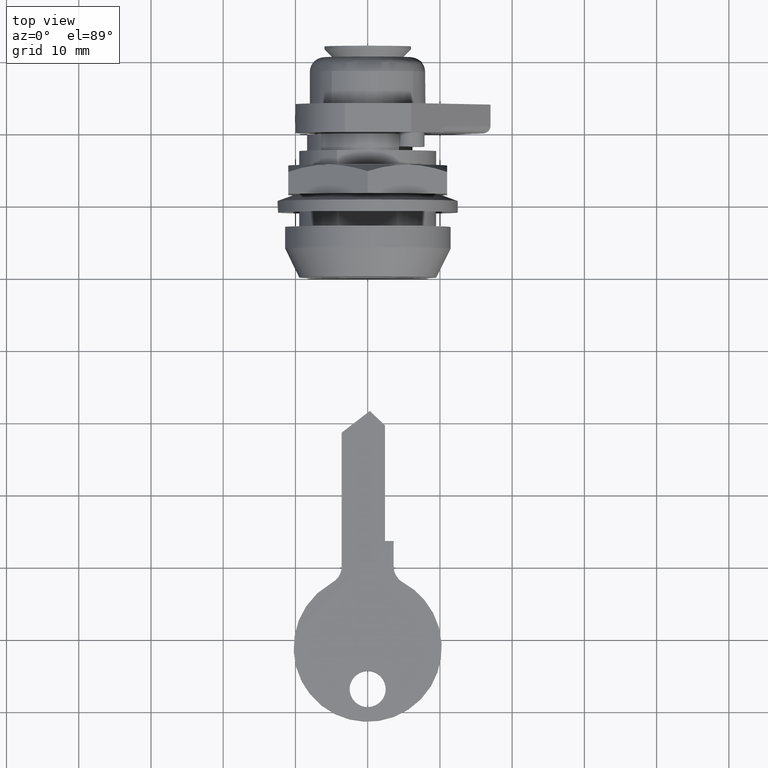
[diagram: clean part render]
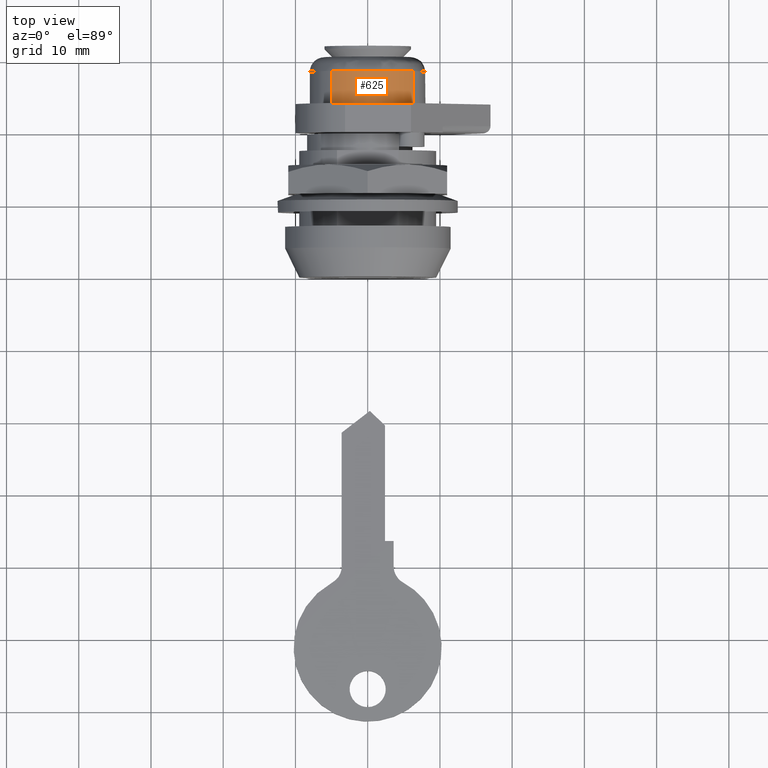
[diagram: same view with one face highlighted and labeled with its STEP entity id]
A machine part, top view. The second image highlights one B-rep face of the part: STEP entity #625.
In plain terms, the highlighted face is a freeform B-spline surface patch.
Its self-contained STEP definition (entity closure, byte-faithful):
#434=CARTESIAN_POINT('',(28.500000000058659,4.980113203027242,6.260868349119726));
#435=VERTEX_POINT('',#434);
#481=CARTESIAN_POINT('',(28.499999999999449,-6.260868364321337,4.980113183916147));
#482=VERTEX_POINT('',#481);
#498=CARTESIAN_POINT('',(24.0,-6.260869558671169,4.980111682408036));
#499=VERTEX_POINT('',#498);
#500=CARTESIAN_POINT('',(28.499999999999449,-6.260868364321337,4.980113183916147));
#501=CARTESIAN_POINT('',(24.0,-6.260869558671169,4.980111682408036));
#502=QUASI_UNIFORM_CURVE('',1,(#500,#501),.UNSPECIFIED.,.F.,.U.);
#503=EDGE_CURVE('',#482,#499,#502,.T.);
#522=CARTESIAN_POINT('',(24.0,4.980113249884827,6.260868311847617));
#523=VERTEX_POINT('',#522);
#539=CARTESIAN_POINT('',(28.500000000058659,4.980113203027242,6.260868349119726));
#540=CARTESIAN_POINT('',(24.0,4.980113249884827,6.260868311847617));
#541=QUASI_UNIFORM_CURVE('',1,(#539,#540),.UNSPECIFIED.,.F.,.U.);
#542=EDGE_CURVE('',#435,#523,#541,.T.);
#547=CARTESIAN_POINT('',(28.612500000278413,-6.295981444275255,4.935969992473361));
#548=CARTESIAN_POINT('',(28.612500000278430,-6.278449028317983,4.958011260147974));
#549=CARTESIAN_POINT('',(28.612500000278427,-1.280748161718357,11.240982347920278));
#550=CARTESIAN_POINT('',(28.612500000278423,5.002218312625018,6.243285151007727));
#551=CARTESIAN_POINT('',(28.612500000278427,5.024254993797421,6.225756383319039));
#552=CARTESIAN_POINT('',(23.884687499993031,-6.295981444275255,4.935969992473361));
#553=CARTESIAN_POINT('',(23.884687499993046,-6.278449028317983,4.958011260147974));
#554=CARTESIAN_POINT('',(23.884687499993031,-1.280748161718357,11.240982347920278));
#555=CARTESIAN_POINT('',(23.884687499993042,5.002218312625018,6.243285151007727));
#556=CARTESIAN_POINT('',(23.884687499993042,5.024254993797421,6.225756383319039));
#564=(BOUNDED_SURFACE()B_SPLINE_SURFACE(2,1,((#547,#552),(#548,#553),(#549,#554),(#550,#555),(#551,#556)),.UNSPECIFIED.,.F.,.F.,.U.)B_SPLINE_SURFACE_WITH_KNOTS((3,1,1,3),(2,2),(0.0,0.066282280091263,13.321116276030301,13.387384702928721),(0.0,4.727812500285391),.UNSPECIFIED.)GEOMETRIC_REPRESENTATION_ITEM()RATIONAL_B_SPLINE_SURFACE(((1.002929290607815,1.002929290607815),(1.001464645303907,1.001464645303907),(0.707106781186548,0.707106781186548),(1.001464339188701,1.001464339188701),(1.002928678377402,1.002928678377402)))REPRESENTATION_ITEM('')SURFACE());
#565=CARTESIAN_POINT('',(28.500000000000000,0.0,8.000000000000014));
#566=VERTEX_POINT('',#565);
#567=CARTESIAN_POINT('',(28.500000000000000,0.0,8.000000000000014));
#568=CARTESIAN_POINT('',(28.500000000000000,2.793722278957967,8.000000000000014));
#569=CARTESIAN_POINT('',(28.500000000058659,4.980113203027242,6.260868349119726));
#577=(BOUNDED_CURVE()B_SPLINE_CURVE(2,(#567,#568,#569),.UNSPECIFIED.,.F.,.U.)B_SPLINE_CURVE_WITH_KNOTS((3,3),(0.0,0.107863783337489),.UNSPECIFIED.)CURVE()GEOMETRIC_REPRESENTATION_ITEM()RATIONAL_B_SPLINE_CURVE((1.0,0.873629717219545,0.856305648856115))REPRESENTATION_ITEM(''));
#578=EDGE_CURVE('',#566,#435,#577,.T.);
#579=ORIENTED_EDGE('',*,*,#578,.T.);
#580=ORIENTED_EDGE('',*,*,#542,.T.);
#581=CARTESIAN_POINT('',(24.0,0.0,8.000000000000014));
#582=VERTEX_POINT('',#581);
#583=CARTESIAN_POINT('',(24.0,0.0,8.000000000000014));
#584=CARTESIAN_POINT('',(23.999999999999993,2.793722312545578,8.000000000000012));
#585=CARTESIAN_POINT('',(24.0,4.980113249884827,6.260868311847617));
#593=(BOUNDED_CURVE()B_SPLINE_CURVE(2,(#583,#584,#585),.UNSPECIFIED.,.F.,.U.)B_SPLINE_CURVE_WITH_KNOTS((3,3),(0.0,0.107863784470408),.UNSPECIFIED.)CURVE()GEOMETRIC_REPRESENTATION_ITEM()RATIONAL_B_SPLINE_CURVE((1.0,0.873629715892247,0.856305648492197))REPRESENTATION_ITEM(''));
#594=EDGE_CURVE('',#582,#523,#593,.T.);
#595=ORIENTED_EDGE('',*,*,#594,.F.);
#596=CARTESIAN_POINT('',(24.000000000000004,-6.260869558671170,4.980111682408036));
#597=CARTESIAN_POINT('',(24.000000000000004,-3.858746187620548,8.000000000000014));
#598=CARTESIAN_POINT('',(24.0,0.0,8.000000000000014));
#606=(BOUNDED_CURVE()B_SPLINE_CURVE(2,(#596,#597,#598),.UNSPECIFIED.,.F.,.U.)B_SPLINE_CURVE_WITH_KNOTS((3,3),(0.857863746572077,1.0),.UNSPECIFIED.)CURVE()GEOMETRIC_REPRESENTATION_ITEM()RATIONAL_B_SPLINE_CURVE((0.856305660665958,0.833477020893644,1.0))REPRESENTATION_ITEM(''));
#607=EDGE_CURVE('',#499,#582,#606,.T.);
#608=ORIENTED_EDGE('',*,*,#607,.F.);
#609=ORIENTED_EDGE('',*,*,#503,.F.);
#610=CARTESIAN_POINT('',(28.499999999999442,-6.260868364321337,4.980113183916147));
#611=CARTESIAN_POINT('',(28.500000000000004,-3.858745005139113,8.000000000000014));
#612=CARTESIAN_POINT('',(28.500000000000000,0.0,8.000000000000014));
#620=(BOUNDED_CURVE()B_SPLINE_CURVE(2,(#610,#611,#612),.UNSPECIFIED.,.F.,.U.)B_SPLINE_CURVE_WITH_KNOTS((3,3),(0.857863782875422,1.0),.UNSPECIFIED.)CURVE()GEOMETRIC_REPRESENTATION_ITEM()RATIONAL_B_SPLINE_CURVE((0.856305649004541,0.833477063425658,1.0))REPRESENTATION_ITEM(''));
#621=EDGE_CURVE('',#482,#566,#620,.T.);
#622=ORIENTED_EDGE('',*,*,#621,.T.);
#623=EDGE_LOOP('',(#579,#580,#595,#608,#609,#622));
#624=FACE_OUTER_BOUND('',#623,.T.);
#625=ADVANCED_FACE('',(#624),#564,.T.);